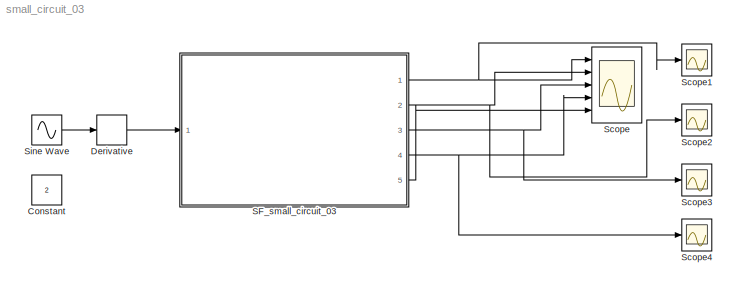
MODEL small_circuit_03
KIND model
BLOCK [Constant] Constant
  SID = 5
  Value = 2
BLOCK [Derivative] Derivative
  SID = 3
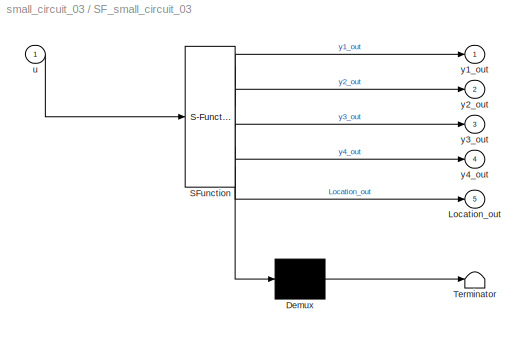
BLOCK [SubSystem] SF_small_circuit_03
  ErrorFcn = Stateflow.Translate.translate
  PermitHierarchicalResolution = ExplicitOnly
  Ports = [1, 5]
  RequestExecContextInheritance = off
  SFBlockType = Chart
  SID = 1
  TreatAsAtomicUnit = on
BLOCK [Demux] SF_small_circuit_03/ Demux 
  Outputs = 1
  Ports = [1, 1]
  SID = 1::74
BLOCK [S-Function] SF_small_circuit_03/ SFunction 
  EnableBusSupport = off
  FunctionName = sf_sfun
  PortCounts = [1 6]
  Ports = [1, 6]
  SFcnIsStateOwnerBlock = off
  SFunctionDeploymentMode = off
  SID = 1::73
  Tag = Stateflow S-Function 3
BLOCK [Terminator] SF_small_circuit_03/ Terminator 
  SID = 1::75
BLOCK [Outport] SF_small_circuit_03/Location_out
  IconDisplay = Port number
  Port = 5
  SID = 1::69
BLOCK [Inport] SF_small_circuit_03/u
  IconDisplay = Port number
  SID = 1::72
BLOCK [Outport] SF_small_circuit_03/y1_out
  IconDisplay = Port number
  SID = 1::65
BLOCK [Outport] SF_small_circuit_03/y2_out
  IconDisplay = Port number
  Port = 2
  SID = 1::66
BLOCK [Outport] SF_small_circuit_03/y3_out
  IconDisplay = Port number
  Port = 3
  SID = 1::67
BLOCK [Outport] SF_small_circuit_03/y4_out
  IconDisplay = Port number
  Port = 4
  SID = 1::68
BLOCK [Scope] Scope
  Floating = off
  NumInputPorts = 5
  Ports = [5]
  SID = 2
  ScopeSpecificationString = C++SS(StrPVP('Location','[1, 53, 1601, 851]'),StrPVP('Open','off'),MxPVP('AxesTitles',54,'struct(''axes1'',''%<SignalLabel>'',''axes2'',''%<SignalLabel>'',''axes3'',''%<SignalLabel>'',''axes4'',''%<SignalLabel>'',''axes5'',''%<SignalLabel>'')'),MxPVP('ScopeGraphics',57,'struct(''FigureColor'',''[0.5 0.5 0.5]'',''AxesColor'',''[0 0 0]'',''AxesTickColor'',''[1 1 1]'',''LineColors'',''[1 1 0;1 0 1;0 ...<+401ch>
BLOCK [Scope] Scope1
  Floating = off
  NumInputPorts = 1
  Ports = [1]
  SID = 6
  ScopeSpecificationString = C++SS(StrPVP('Location','[2176, 425, 2500, 664]'),StrPVP('Open','off'),MxPVP('AxesTitles',54,'struct(''axes1'',''%<SignalLabel>'')'),MxPVP('ScopeGraphics',57,'struct(''FigureColor'',''[0.5 0.5 0.5]'',''AxesColor'',''[0 0 0]'',''AxesTickColor'',''[1 1 1]'',''LineColors'',''[1 1 0;1 0 1;0 1 1;1 0 0;0 1 0;0 0 1]'',''LineStyles'',''-|-|-|-|-|-'',''LineWidths'',''[0.5 0.5 0.5 0.5 0.5 0.5]'',''MarkerSty...<+258ch>
BLOCK [Scope] Scope2
  Floating = off
  NumInputPorts = 1
  Ports = [1]
  SID = 7
  ScopeSpecificationString = C++SS(StrPVP('Location','[188, 365, 512, 604]'),StrPVP('Open','off'),MxPVP('AxesTitles',54,'struct(''axes1'',''%<SignalLabel>'')'),MxPVP('ScopeGraphics',57,'struct(''FigureColor'',''[0.5 0.5 0.5]'',''AxesColor'',''[0 0 0]'',''AxesTickColor'',''[1 1 1]'',''LineColors'',''[1 1 0;1 0 1;0 1 1;1 0 0;0 1 0;0 0 1]'',''LineStyles'',''-|-|-|-|-|-'',''LineWidths'',''[0.5 0.5 0.5 0.5 0.5 0.5]'',''MarkerStyle...<+256ch>  <repeated x3 — deduplicated; at blocks: Scope2, Scope3, Scope4>
BLOCK [Scope] Scope3
  Floating = off
  NumInputPorts = 1
  Ports = [1]
  SID = 8
BLOCK [Scope] Scope4
  Floating = off
  NumInputPorts = 1
  Ports = [1]
  SID = 9
BLOCK [Sin] Sine Wave
  Ports = [0, 1]
  SID = 4
  SampleTime = 0
LINE Derivative:1 -> SF_small_circuit_03:1
LINE SF_small_circuit_03/ Demux :1 -> SF_small_circuit_03/ Terminator :1
LINE SF_small_circuit_03/ SFunction :1 -> SF_small_circuit_03/ Demux :1
LINE SF_small_circuit_03/ SFunction :2 -> SF_small_circuit_03/y1_out:1
LINE SF_small_circuit_03/ SFunction :3 -> SF_small_circuit_03/y2_out:1
LINE SF_small_circuit_03/ SFunction :4 -> SF_small_circuit_03/y3_out:1
LINE SF_small_circuit_03/ SFunction :5 -> SF_small_circuit_03/y4_out:1
LINE SF_small_circuit_03/ SFunction :6 -> SF_small_circuit_03/Location_out:1
LINE SF_small_circuit_03/u:1 -> SF_small_circuit_03/ SFunction :1
NET SF_small_circuit_03:1 -> Scope1:1, Scope:1
NET SF_small_circuit_03:2 -> Scope2:1, Scope:2
NET SF_small_circuit_03:3 -> Scope3:1, Scope:3
NET SF_small_circuit_03:4 -> Scope4:1, Scope:4
LINE SF_small_circuit_03:5 -> Scope:5
LINE Sine Wave:1 -> Derivative:1
note: NET lines group one-source signal fan-out (src -> all destinations, sorted); 1:1 wires keep LINE
CHART SF_small_circuit_03 states=1 transitions=1
  STATE_LABEL 'always\\ndu:\\ny1_dot=0-y3;\\ny2_dot=y1;\\ny3_dot=y1-y3-u;\\ny4_dot=0-y3;\\ny1_out=y1;\\ny2_out=y2;\\ny3_out=y3;\\ny4_out=y4;\\nLocation_out =1;'
